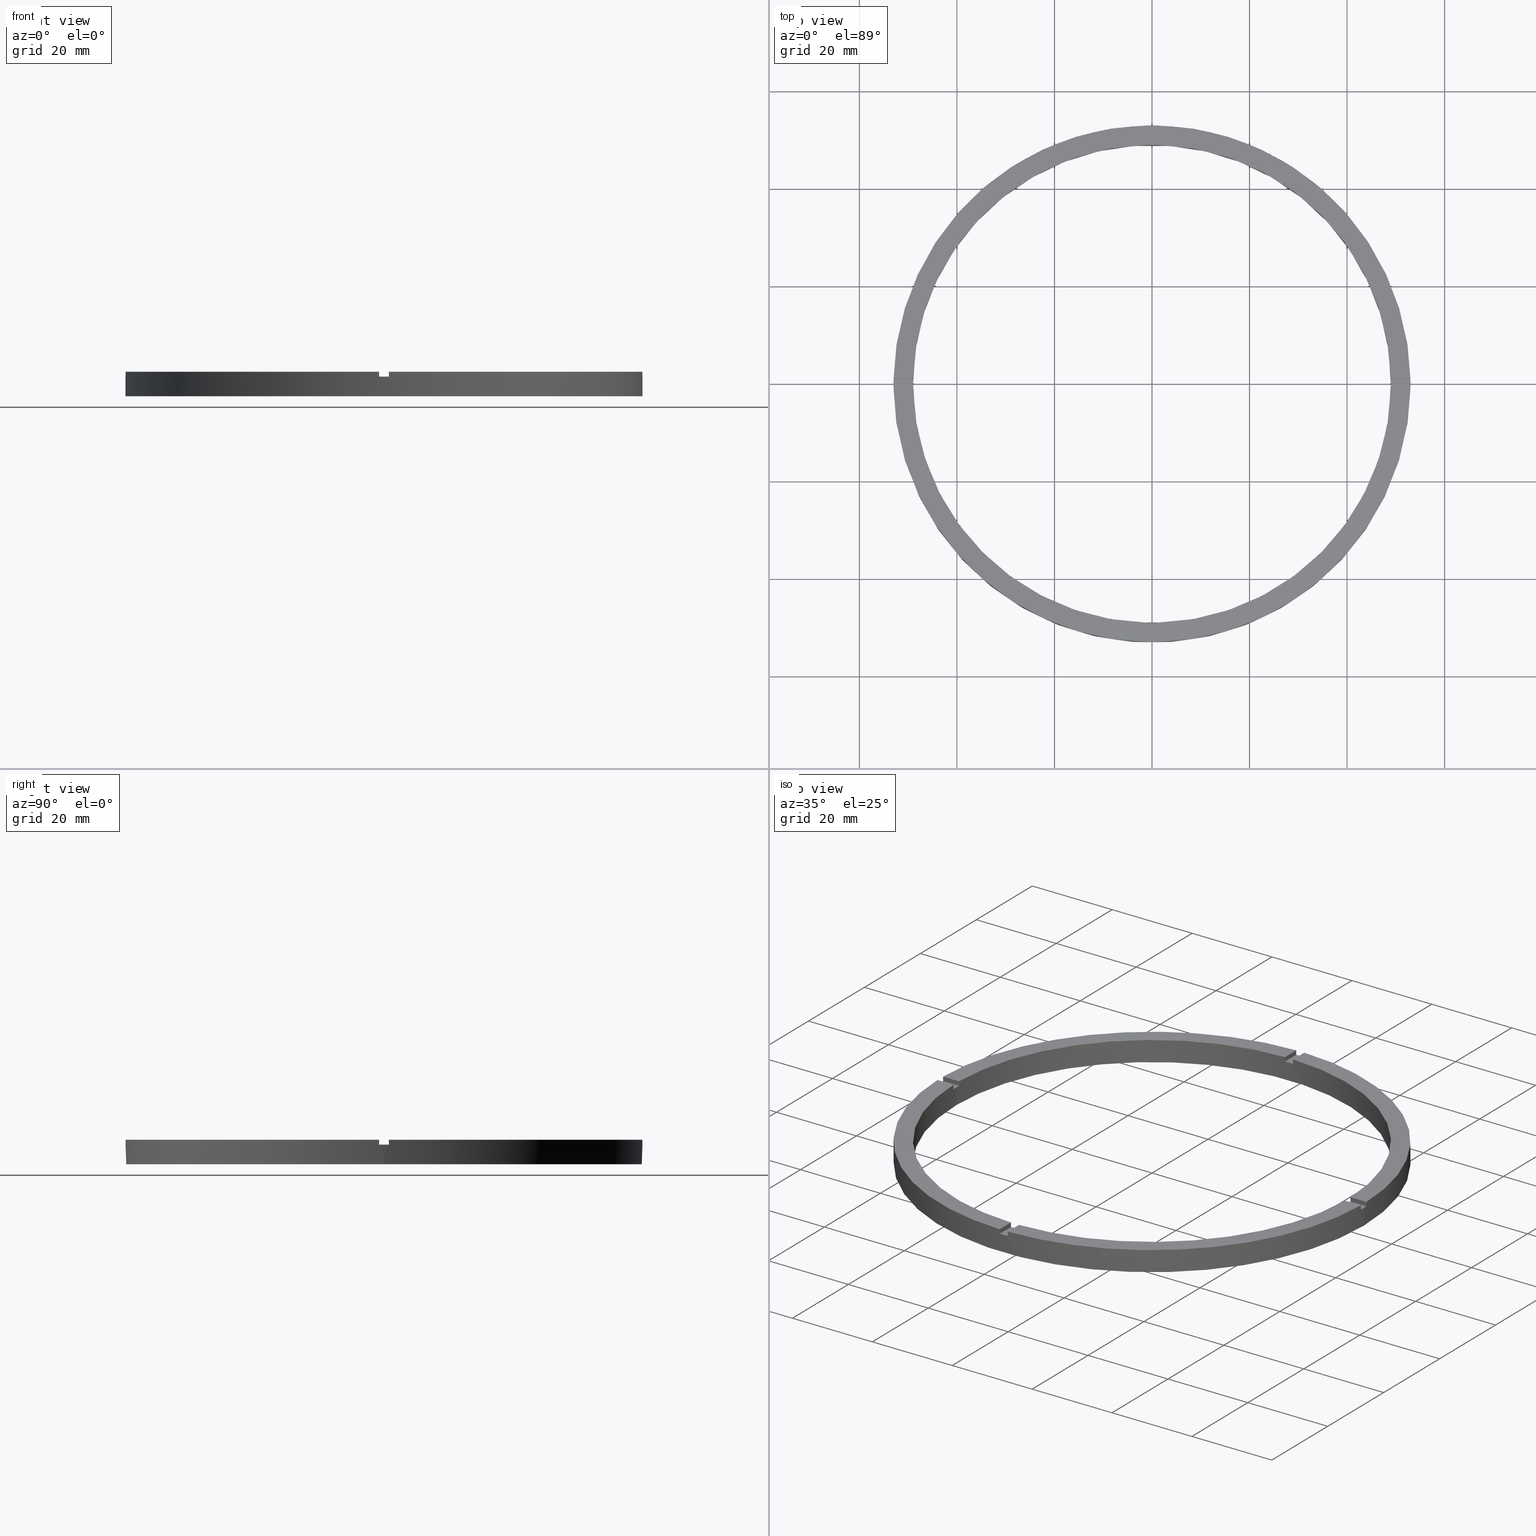
[diagram: canonical four-view strip — front | top / right | iso, engineering-drawing reading convention]
A machine part, canonical four-view strip (front | top / right | iso — engineering-drawing reading convention). The complete STEP part file that produces these views, byte-faithful:
ISO-10303-21;
HEADER;
FILE_DESCRIPTION (( 'STEP AP203' ),
    '1' );
FILE_NAME ('514216.step',
    '2024-12-26T02:48:59',
    ( 'MSI' ),
    ( '' ),
    'SwSTEP 2.0',
    'SolidWorks 2020',
    '' );
FILE_SCHEMA (( 'CONFIG_CONTROL_DESIGN' ));
ENDSEC;

DATA;
#1 = PLANE ( 'NONE',  #713 ) ;
#2 = EDGE_CURVE ( 'NONE', #709, #726, #422, .T. ) ;
#3 = CARTESIAN_POINT ( 'NONE',  ( 0.000000000000000000, 0.000000000000000000, 5.000000000000000000 ) ) ;
#4 = AXIS2_PLACEMENT_3D ( 'NONE', #399, #776, #704 ) ;
#5 = CARTESIAN_POINT ( 'NONE',  ( 0.000000000000000000, 0.000000000000000000, 5.000000000000000000 ) ) ;
#6 = DIRECTION ( 'NONE',  ( 0.000000000000000000, 0.000000000000000000, 1.000000000000000000 ) ) ;
#7 = CARTESIAN_POINT ( 'NONE',  ( 0.9999999999999729106, 52.99056519796708642, 4.000000000000000000 ) ) ;
#8 = APPLICATION_PROTOCOL_DEFINITION ( 'international standard', 'config_control_design', 1994, #666 ) ;
#9 = AXIS2_PLACEMENT_3D ( 'NONE', #533, #412, #347 ) ;
#10 = CARTESIAN_POINT ( 'NONE',  ( -52.99056519796708642, 0.9999999999999676925, 5.000000000000000000 ) ) ;
#11 = DIRECTION ( 'NONE',  ( 0.000000000000000000, 0.000000000000000000, 1.000000000000000000 ) ) ;
#12 = CC_DESIGN_PERSON_AND_ORGANIZATION_ASSIGNMENT ( #605, #251, ( #441 ) ) ;
#13 = CARTESIAN_POINT ( 'NONE',  ( -48.98979485566356118, 0.9999999999999685807, 5.000000000000000000 ) ) ;
#14 = CARTESIAN_POINT ( 'NONE',  ( 0.000000000000000000, 0.000000000000000000, 0.000000000000000000 ) ) ;
#15 = EDGE_CURVE ( 'NONE', #727, #710, #674, .T. ) ;
#16 = CARTESIAN_POINT ( 'NONE',  ( 43.00000000000000000, -1.000000000000155209, 5.000000000000000000 ) ) ;
#17 = EDGE_CURVE ( 'NONE', #473, #504, #358, .T. ) ;
#18 = CARTESIAN_POINT ( 'NONE',  ( -1.000000000000156097, -52.99056519796708642, 5.000000000000000000 ) ) ;
#19 = CARTESIAN_POINT ( 'NONE',  ( -52.99056519796708642, -1.000000000000032419, 5.000000000000000000 ) ) ;
#20 = DIRECTION ( 'NONE',  ( 0.000000000000000000, 0.000000000000000000, 1.000000000000000000 ) ) ;
#21 = CARTESIAN_POINT ( 'NONE',  ( -43.00000000000019185, -1.000000000000030420, 5.000000000000000000 ) ) ;
#22 = EDGE_CURVE ( 'NONE', #724, #767, #628, .T. ) ;
#23 = DIRECTION ( 'NONE',  ( 0.000000000000000000, 0.000000000000000000, 1.000000000000000000 ) ) ;
#24 = DIRECTION ( 'NONE',  ( 1.000000000000000000, 0.000000000000000000, -0.000000000000000000 ) ) ;
#25 = AXIS2_PLACEMENT_3D ( 'NONE', #137, #211, #319 ) ;
#26 = FACE_OUTER_BOUND ( 'NONE', #478, .T. ) ;
#27 = CARTESIAN_POINT ( 'NONE',  ( 0.000000000000000000, 0.000000000000000000, 0.000000000000000000 ) ) ;
#28 = VECTOR ( 'NONE', #256, 1000.000000000000000 ) ;
#29 = VECTOR ( 'NONE', #564, 1000.000000000000000 ) ;
#30 = FACE_OUTER_BOUND ( 'NONE', #222, .T. ) ;
#31 = DIRECTION ( 'NONE',  ( 1.000000000000000000, 1.951563910473907735E-16, -0.000000000000000000 ) ) ;
#32 = LINE ( 'NONE', #16, #55 ) ;
#33 = ADVANCED_FACE ( 'NONE', ( #614 ), #640, .T. ) ;
#34 = CIRCLE ( 'NONE', #448, 53.00000000000000711 ) ;
#35 = LINE ( 'NONE', #782, #289 ) ;
#36 = LINE ( 'NONE', #712, #581 ) ;
#37 = AXIS2_PLACEMENT_3D ( 'NONE', #515, #383, #386 ) ;
#38 = LINE ( 'NONE', #179, #549 ) ;
#39 = VECTOR ( 'NONE', #486, 1000.000000000000000 ) ;
#40 = CARTESIAN_POINT ( 'NONE',  ( 0.000000000000000000, 0.000000000000000000, 4.000000000000000000 ) ) ;
#41 = CIRCLE ( 'NONE', #302, 53.00000000000000711 ) ;
#42 = CIRCLE ( 'NONE', #424, 49.00000000000000000 ) ;
#43 = CC_DESIGN_PERSON_AND_ORGANIZATION_ASSIGNMENT ( #747, #86, ( #493 ) ) ;
#44 = DIRECTION ( 'NONE',  ( 1.301042606982605074E-16, -1.000000000000000000, 0.000000000000000000 ) ) ;
#45 = CYLINDRICAL_SURFACE ( 'NONE', #532, 49.00000000000000000 ) ;
#46 = PLANE ( 'NONE',  #742 ) ;
#47 = FACE_OUTER_BOUND ( 'NONE', #470, .T. ) ;
#48 = CIRCLE ( 'NONE', #622, 53.00000000000000711 ) ;
#49 = CIRCLE ( 'NONE', #665, 49.00000000000000000 ) ;
#50 = VECTOR ( 'NONE', #325, 1000.000000000000000 ) ;
#51 = EDGE_CURVE ( 'NONE', #459, #240, #97, .T. ) ;
#52 = DIRECTION ( 'NONE',  ( -1.000000000000000000, 0.000000000000000000, 0.000000000000000000 ) ) ;
#53 = CIRCLE ( 'NONE', #489, 49.00000000000000000 ) ;
#54 = EDGE_CURVE ( 'NONE', #244, #646, #101, .T. ) ;
#55 = VECTOR ( 'NONE', #201, 1000.000000000000000 ) ;
#56 = AXIS2_PLACEMENT_3D ( 'NONE', #700, #226, #773 ) ;
#57 = LINE ( 'NONE', #769, #29 ) ;
#58 = LINE ( 'NONE', #378, #598 ) ;
#59 = DIRECTION ( 'NONE',  ( -0.000000000000000000, -0.000000000000000000, -1.000000000000000000 ) ) ;
#60 = VECTOR ( 'NONE', #254, 1000.000000000000000 ) ;
#61 = CIRCLE ( 'NONE', #243, 53.00000000000000711 ) ;
#62 = EDGE_CURVE ( 'NONE', #407, #723, #87, .T. ) ;
#63 = LINE ( 'NONE', #361, #590 ) ;
#64 = DIRECTION ( 'NONE',  ( -0.000000000000000000, -1.000000000000000000, -0.000000000000000000 ) ) ;
#65 = DIRECTION ( 'NONE',  ( 1.000000000000000000, 0.000000000000000000, 0.000000000000000000 ) ) ;
#66 = AXIS2_PLACEMENT_3D ( 'NONE', #132, #116, #264 ) ;
#67 = CIRCLE ( 'NONE', #538, 53.00000000000000711 ) ;
#68 = CARTESIAN_POINT ( 'NONE',  ( 0.000000000000000000, 0.000000000000000000, 4.000000000000000000 ) ) ;
#69 = CARTESIAN_POINT ( 'NONE',  ( -1.000000000000156763, -48.98979485566356118, 5.000000000000000000 ) ) ;
#70 = VECTOR ( 'NONE', #59, 1000.000000000000000 ) ;
#71 = FACE_OUTER_BOUND ( 'NONE', #199, .T. ) ;
#72 = APPLICATION_PROTOCOL_DEFINITION ( 'international standard', 'config_control_design', 1994, #763 ) ;
#73 = DATE_AND_TIME ( #601, #76 ) ;
#74 = DIRECTION ( 'NONE',  ( 1.000000000000000000, 0.000000000000000000, 0.000000000000000000 ) ) ;
#75 = VECTOR ( 'NONE', #215, 1000.000000000000000 ) ;
#76 = LOCAL_TIME ( 10, 48, 59.00000000000000000, #327 ) ;
#77 = AXIS2_PLACEMENT_3D ( 'NONE', #777, #173, #293 ) ;
#78 = VECTOR ( 'NONE', #64, 1000.000000000000000 ) ;
#79 = CARTESIAN_POINT ( 'NONE',  ( 0.000000000000000000, 0.000000000000000000, 0.000000000000000000 ) ) ;
#80 = CYLINDRICAL_SURFACE ( 'NONE', #545, 49.00000000000000000 ) ;
#81 = DIRECTION ( 'NONE',  ( 1.000000000000000000, 1.951563910473907735E-16, -0.000000000000000000 ) ) ;
#82 = CALENDAR_DATE ( 2024, 26, 12 ) ;
#83 = APPROVAL ( #301, 'δָ��' ) ;
#84 = VECTOR ( 'NONE', #490, 1000.000000000000000 ) ;
#85 = DIRECTION ( 'NONE',  ( 1.000000000000000000, 0.000000000000000000, 0.000000000000000000 ) ) ;
#86 = PERSON_AND_ORGANIZATION_ROLE ( 'design_supplier' ) ;
#87 = LINE ( 'NONE', #670, #617 ) ;
#88 = CARTESIAN_POINT ( 'NONE',  ( -52.99056519796708642, -1.000000000000032419, 4.000000000000000000 ) ) ;
#89 = LINE ( 'NONE', #770, #90 ) ;
#90 = VECTOR ( 'NONE', #630, 1000.000000000000000 ) ;
#91 = VECTOR ( 'NONE', #261, 1000.000000000000000 ) ;
#92 = DIRECTION ( 'NONE',  ( 1.000000000000000000, 0.000000000000000000, -0.000000000000000000 ) ) ;
#93 = DIRECTION ( 'NONE',  ( 0.000000000000000000, 0.000000000000000000, 1.000000000000000000 ) ) ;
#94 = VECTOR ( 'NONE', #259, 1000.000000000000000 ) ;
#95 = FACE_OUTER_BOUND ( 'NONE', #205, .T. ) ;
#96 = AXIS2_PLACEMENT_3D ( 'NONE', #385, #458, #683 ) ;
#97 = CIRCLE ( 'NONE', #414, 49.00000000000000000 ) ;
#98 = VECTOR ( 'NONE', #388, 1000.000000000000000 ) ;
#99 = EDGE_CURVE ( 'NONE', #724, #415, #613, .T. ) ;
#100 = CARTESIAN_POINT ( 'NONE',  ( -48.98979485566356118, 0.9999999999999685807, 4.000000000000000000 ) ) ;
#101 = LINE ( 'NONE', #677, #365 ) ;
#102 = DIRECTION ( 'NONE',  ( 0.000000000000000000, 0.000000000000000000, 1.000000000000000000 ) ) ;
#103 = CARTESIAN_POINT ( 'NONE',  ( -48.98979485566356118, -1.000000000000031530, 4.000000000000000000 ) ) ;
#104 = DIRECTION ( 'NONE',  ( -0.000000000000000000, -0.000000000000000000, -1.000000000000000000 ) ) ;
#105 = DIRECTION ( 'NONE',  ( -0.000000000000000000, -0.000000000000000000, -1.000000000000000000 ) ) ;
#106 = DIRECTION ( 'NONE',  ( -0.000000000000000000, -0.000000000000000000, -1.000000000000000000 ) ) ;
#107 = AXIS2_PLACEMENT_3D ( 'NONE', #308, #104, #52 ) ;
#108 = EDGE_CURVE ( 'NONE', #739, #129, #357, .T. ) ;
#109 = MECHANICAL_CONTEXT ( 'NONE', #666, 'mechanical' ) ;
#110 = EDGE_CURVE ( 'NONE', #407, #709, #611, .T. ) ;
#111 = CARTESIAN_POINT ( 'NONE',  ( -53.00000000000000711, 0.000000000000000000, 0.000000000000000000 ) ) ;
#112 = ORIENTED_EDGE ( 'NONE', *, *, #427, .T. ) ;
#113 = MANIFOLD_SOLID_BREP ( '�г�-����1', #475 ) ;
#114 = DIRECTION ( 'NONE',  ( 1.000000000000000000, 0.000000000000000000, 0.000000000000000000 ) ) ;
#115 = ORIENTED_EDGE ( 'NONE', *, *, #298, .F. ) ;
#116 = DIRECTION ( 'NONE',  ( 1.951563910473907735E-16, -1.000000000000000000, 0.000000000000000000 ) ) ;
#117 = ORIENTED_EDGE ( 'NONE', *, *, #509, .T. ) ;
#118 = EDGE_CURVE ( 'NONE', #705, #474, #89, .T. ) ;
#119 = ORIENTED_EDGE ( 'NONE', *, *, #707, .F. ) ;
#120 = CARTESIAN_POINT ( 'NONE',  ( 48.98979485566356828, 0.9999999999998452349, 5.000000000000000000 ) ) ;
#121 = ORIENTED_EDGE ( 'NONE', *, *, #110, .F. ) ;
#122 = DIRECTION ( 'NONE',  ( 1.000000000000000000, 0.000000000000000000, -0.000000000000000000 ) ) ;
#123 = EDGE_LOOP ( 'NONE', ( #701, #190, #682, #171 ) ) ;
#124 = CARTESIAN_POINT ( 'NONE',  ( 0.9999999999999729106, 48.98979485566356118, 5.000000000000000000 ) ) ;
#125 = AXIS2_PLACEMENT_3D ( 'NONE', #551, #20, #263 ) ;
#126 = ORIENTED_EDGE ( 'NONE', *, *, #379, .F. ) ;
#127 = ORIENTED_EDGE ( 'NONE', *, *, #62, .T. ) ;
#128 = CARTESIAN_POINT ( 'NONE',  ( 0.9999999999998425704, -43.00000000000018474, 4.000000000000000000 ) ) ;
#129 = VERTEX_POINT ( 'NONE', #520 ) ;
#130 = ORIENTED_EDGE ( 'NONE', *, *, #554, .T. ) ;
#131 = DATE_TIME_ROLE ( 'classification_date' ) ;
#132 = CARTESIAN_POINT ( 'NONE',  ( -43.00000000000019185, -1.000000000000030420, 4.000000000000000000 ) ) ;
#133 = ORIENTED_EDGE ( 'NONE', *, *, #167, .T. ) ;
#134 = ORIENTED_EDGE ( 'NONE', *, *, #17, .T. ) ;
#135 = DIRECTION ( 'NONE',  ( 0.000000000000000000, 0.000000000000000000, 1.000000000000000000 ) ) ;
#136 = ORIENTED_EDGE ( 'NONE', *, *, #697, .F. ) ;
#137 = CARTESIAN_POINT ( 'NONE',  ( 0.000000000000000000, 0.000000000000000000, 4.000000000000000000 ) ) ;
#138 = CARTESIAN_POINT ( 'NONE',  ( 0.000000000000000000, 0.000000000000000000, 5.000000000000000000 ) ) ;
#139 = ORIENTED_EDGE ( 'NONE', *, *, #22, .T. ) ;
#140 = AXIS2_PLACEMENT_3D ( 'NONE', #79, #768, #680 ) ;
#141 = ORIENTED_EDGE ( 'NONE', *, *, #54, .T. ) ;
#142 = ORIENTED_EDGE ( 'NONE', *, *, #632, .T. ) ;
#143 = CARTESIAN_POINT ( 'NONE',  ( 0.000000000000000000, 0.000000000000000000, 4.000000000000000000 ) ) ;
#144 = CARTESIAN_POINT ( 'NONE',  ( 0.000000000000000000, 0.000000000000000000, 5.000000000000000000 ) ) ;
#145 = EDGE_LOOP ( 'NONE', ( #479, #430, #234, #197 ) ) ;
#146 = VERTEX_POINT ( 'NONE', #88 ) ;
#147 = CC_DESIGN_APPROVAL ( #541, ( #493 ) ) ;
#148 = ORIENTED_EDGE ( 'NONE', *, *, #379, .T. ) ;
#149 = ORIENTED_EDGE ( 'NONE', *, *, #525, .F. ) ;
#150 = VERTEX_POINT ( 'NONE', #18 ) ;
#151 = VECTOR ( 'NONE', #283, 1000.000000000000000 ) ;
#152 = ORIENTED_EDGE ( 'NONE', *, *, #539, .F. ) ;
#153 = EDGE_CURVE ( 'NONE', #437, #240, #620, .T. ) ;
#154 = ADVANCED_FACE ( 'NONE', ( #359 ), #760, .F. ) ;
#155 = ORIENTED_EDGE ( 'NONE', *, *, #118, .F. ) ;
#156 = EDGE_CURVE ( 'NONE', #739, #404, #369, .T. ) ;
#157 = DIRECTION ( 'NONE',  ( 1.000000000000000000, 0.000000000000000000, 0.000000000000000000 ) ) ;
#158 = EDGE_LOOP ( 'NONE', ( #168, #644, #231, #141 ) ) ;
#159 = ORIENTED_EDGE ( 'NONE', *, *, #419, .T. ) ;
#160 = PRODUCT_DEFINITION_SHAPE ( 'NONE', 'NONE',  #441 ) ;
#161 = ORIENTED_EDGE ( 'NONE', *, *, #527, .F. ) ;
#162 = AXIS2_PLACEMENT_3D ( 'NONE', #143, #352, #157 ) ;
#163 = ORIENTED_EDGE ( 'NONE', *, *, #156, .F. ) ;
#164 = ORIENTED_EDGE ( 'NONE', *, *, #594, .T. ) ;
#165 = ORIENTED_EDGE ( 'NONE', *, *, #468, .T. ) ;
#166 = ORIENTED_EDGE ( 'NONE', *, *, #17, .F. ) ;
#167 = EDGE_CURVE ( 'NONE', #244, #438, #616, .T. ) ;
#168 = ORIENTED_EDGE ( 'NONE', *, *, #372, .T. ) ;
#169 = UNCERTAINTY_MEASURE_WITH_UNIT (LENGTH_MEASURE( 1.000000000000000082E-05 ), #257, 'distance_accuracy_value', 'NONE');
#170 = DIRECTION ( 'NONE',  ( 1.000000000000000000, 0.000000000000000000, 0.000000000000000000 ) ) ;
#171 = ORIENTED_EDGE ( 'NONE', *, *, #554, .F. ) ;
#172 = CARTESIAN_POINT ( 'NONE',  ( 43.00000000000000000, -1.000000000000155209, 4.000000000000000000 ) ) ;
#173 = DIRECTION ( 'NONE',  ( 1.000000000000000000, -0.000000000000000000, 0.000000000000000000 ) ) ;
#174 = APPROVAL_ROLE ( '' ) ;
#175 = ORIENTED_EDGE ( 'NONE', *, *, #276, .F. ) ;
#176 = ORIENTED_EDGE ( 'NONE', *, *, #99, .F. ) ;
#177 = DIRECTION ( 'NONE',  ( 1.000000000000000000, 0.000000000000000000, 0.000000000000000000 ) ) ;
#178 = ORIENTED_EDGE ( 'NONE', *, *, #311, .T. ) ;
#179 = CARTESIAN_POINT ( 'NONE',  ( -1.000000000000027089, 43.00000000000000000, 4.000000000000000000 ) ) ;
#180 = DIRECTION ( 'NONE',  ( 0.000000000000000000, 0.000000000000000000, 1.000000000000000000 ) ) ;
#181 = ORIENTED_EDGE ( 'NONE', *, *, #2, .F. ) ;
#182 = ORIENTED_EDGE ( 'NONE', *, *, #759, .T. ) ;
#183 = EDGE_LOOP ( 'NONE', ( #159, #413, #126, #186, #391, #155, #117, #440, #133, #696, #178, #443 ) ) ;
#184 = EDGE_LOOP ( 'NONE', ( #711, #447, #112, #389 ) ) ;
#185 = PRODUCT_RELATED_PRODUCT_CATEGORY ( 'detail', '', ( #524 ) ) ;
#186 = ORIENTED_EDGE ( 'NONE', *, *, #153, .F. ) ;
#187 = PLANE ( 'NONE',  #77 ) ;
#188 =( NAMED_UNIT ( * ) PLANE_ANGLE_UNIT ( ) SI_UNIT ( $, .RADIAN. ) );
#189 = ORIENTED_EDGE ( 'NONE', *, *, #525, .T. ) ;
#190 = ORIENTED_EDGE ( 'NONE', *, *, #589, .T. ) ;
#191 = AXIS2_PLACEMENT_3D ( 'NONE', #592, #722, #645 ) ;
#192 = ORIENTED_EDGE ( 'NONE', *, *, #296, .F. ) ;
#193 = ORIENTED_EDGE ( 'NONE', *, *, #634, .F. ) ;
#194 = VERTEX_POINT ( 'NONE', #124 ) ;
#195 = ORIENTED_EDGE ( 'NONE', *, *, #419, .F. ) ;
#196 = DIRECTION ( 'NONE',  ( -0.000000000000000000, -0.000000000000000000, -1.000000000000000000 ) ) ;
#197 = ORIENTED_EDGE ( 'NONE', *, *, #594, .F. ) ;
#198 = ORIENTED_EDGE ( 'NONE', *, *, #278, .T. ) ;
#199 = EDGE_LOOP ( 'NONE', ( #192, #718, #717, #426, #661, #453, #706, #748, #176, #139, #149, #681 ) ) ;
#200 = ORIENTED_EDGE ( 'NONE', *, *, #108, .T. ) ;
#201 = DIRECTION ( 'NONE',  ( 1.000000000000000000, 6.505213034913025371E-17, 0.000000000000000000 ) ) ;
#202 = CC_DESIGN_DATE_AND_TIME_ASSIGNMENT ( #464, #337, ( #441 ) ) ;
#203 = APPROVAL_STATUS ( 'not_yet_approved' ) ;
#204 = EDGE_LOOP ( 'NONE', ( #652, #398, #692, #491 ) ) ;
#205 = EDGE_LOOP ( 'NONE', ( #200, #483, #212, #460 ) ) ;
#206 = ORIENTED_EDGE ( 'NONE', *, *, #539, .T. ) ;
#207 = CARTESIAN_POINT ( 'NONE',  ( 0.9999999999998432365, -48.98979485566356828, 5.000000000000000000 ) ) ;
#208 = ORIENTED_EDGE ( 'NONE', *, *, #530, .F. ) ;
#209 = COORDINATED_UNIVERSAL_TIME_OFFSET ( 8, 0, .AHEAD. ) ;
#210 = ORIENTED_EDGE ( 'NONE', *, *, #372, .F. ) ;
#211 = DIRECTION ( 'NONE',  ( -0.000000000000000000, 0.000000000000000000, 1.000000000000000000 ) ) ;
#212 = ORIENTED_EDGE ( 'NONE', *, *, #662, .F. ) ;
#213 = EDGE_CURVE ( 'NONE', #739, #738, #366, .T. ) ;
#214 = ORIENTED_EDGE ( 'NONE', *, *, #714, .F. ) ;
#215 = DIRECTION ( 'NONE',  ( -1.301042606982605074E-16, 1.000000000000000000, -0.000000000000000000 ) ) ;
#216 = ORIENTED_EDGE ( 'NONE', *, *, #278, .F. ) ;
#217 = CARTESIAN_POINT ( 'NONE',  ( 0.000000000000000000, 0.000000000000000000, 0.000000000000000000 ) ) ;
#218 = DIRECTION ( 'NONE',  ( 1.000000000000000000, 0.000000000000000000, 0.000000000000000000 ) ) ;
#219 = LOCAL_TIME ( 10, 48, 59.00000000000000000, #752 ) ;
#220 = ORIENTED_EDGE ( 'NONE', *, *, #153, .T. ) ;
#221 = EDGE_CURVE ( 'NONE', #659, #705, #368, .T. ) ;
#222 = EDGE_LOOP ( 'NONE', ( #675, #431, #719, #452 ) ) ;
#223 = DATE_AND_TIME ( #745, #757 ) ;
#224 = VERTEX_POINT ( 'NONE', #227 ) ;
#225 = APPROVAL_PERSON_ORGANIZATION ( #751, #516, #268 ) ;
#226 = DIRECTION ( 'NONE',  ( 0.000000000000000000, 0.000000000000000000, 1.000000000000000000 ) ) ;
#227 = CARTESIAN_POINT ( 'NONE',  ( 53.00000000000000711, 6.490628035480973107E-15, 0.000000000000000000 ) ) ;
#228 = DATE_AND_TIME ( #497, #219 ) ;
#229 = ORIENTED_EDGE ( 'NONE', *, *, #686, .F. ) ;
#230 = ADVANCED_FACE ( 'NONE', ( #363 ), #329, .T. ) ;
#231 = ORIENTED_EDGE ( 'NONE', *, *, #167, .F. ) ;
#232 = CARTESIAN_POINT ( 'NONE',  ( -1.000000000000157430, -43.00000000000018474, 5.000000000000000000 ) ) ;
#233 = DIRECTION ( 'NONE',  ( 0.000000000000000000, 0.000000000000000000, 1.000000000000000000 ) ) ;
#234 = ORIENTED_EDGE ( 'NONE', *, *, #298, .T. ) ;
#235 = PERSON_AND_ORGANIZATION ( #721, #599 ) ;
#236 = ORIENTED_EDGE ( 'NONE', *, *, #62, .F. ) ;
#237 = PERSON_AND_ORGANIZATION ( #721, #599 ) ;
#238 = ADVANCED_FACE ( 'NONE', ( #95 ), #576, .F. ) ;
#239 = DIRECTION ( 'NONE',  ( -1.000000000000000000, 0.000000000000000000, 0.000000000000000000 ) ) ;
#240 = VERTEX_POINT ( 'NONE', #523 ) ;
#241 = CARTESIAN_POINT ( 'NONE',  ( 0.000000000000000000, 0.000000000000000000, 5.000000000000000000 ) ) ;
#242 = CARTESIAN_POINT ( 'NONE',  ( -52.99056519796708642, 0.9999999999999676925, 5.000000000000000000 ) ) ;
#243 = AXIS2_PLACEMENT_3D ( 'NONE', #68, #535, #498 ) ;
#244 = VERTEX_POINT ( 'NONE', #637 ) ;
#245 = EDGE_CURVE ( 'NONE', #244, #672, #625, .T. ) ;
#246 = CARTESIAN_POINT ( 'NONE',  ( 0.000000000000000000, 0.000000000000000000, 5.000000000000000000 ) ) ;
#247 = CC_DESIGN_APPROVAL ( #83, ( #441 ) ) ;
#248 = DIRECTION ( 'NONE',  ( 1.000000000000000000, 0.000000000000000000, 0.000000000000000000 ) ) ;
#249 = DIRECTION ( 'NONE',  ( 0.000000000000000000, 0.000000000000000000, 1.000000000000000000 ) ) ;
#250 =( GEOMETRIC_REPRESENTATION_CONTEXT ( 3 ) GLOBAL_UNCERTAINTY_ASSIGNED_CONTEXT ( ( #169 ) ) GLOBAL_UNIT_ASSIGNED_CONTEXT ( ( #257, #188, #743 ) ) REPRESENTATION_CONTEXT ( 'NONE', 'WORKASPACE' ) );
#251 = PERSON_AND_ORGANIZATION_ROLE ( 'creator' ) ;
#252 = CC_DESIGN_PERSON_AND_ORGANIZATION_ASSIGNMENT ( #235, #446, ( #615 ) ) ;
#253 = CARTESIAN_POINT ( 'NONE',  ( 0.000000000000000000, 0.000000000000000000, 4.000000000000000000 ) ) ;
#254 = DIRECTION ( 'NONE',  ( -0.000000000000000000, -0.000000000000000000, -1.000000000000000000 ) ) ;
#255 = PLANE ( 'NONE',  #684 ) ;
#256 = DIRECTION ( 'NONE',  ( 1.000000000000000000, 6.505213034913025371E-17, 0.000000000000000000 ) ) ;
#257 =( LENGTH_UNIT ( ) NAMED_UNIT ( * ) SI_UNIT ( .MILLI., .METRE. ) );
#258 = CARTESIAN_POINT ( 'NONE',  ( -53.00000000000000711, 0.000000000000000000, 5.000000000000000000 ) ) ;
#259 = DIRECTION ( 'NONE',  ( -0.000000000000000000, -0.000000000000000000, -1.000000000000000000 ) ) ;
#260 = CARTESIAN_POINT ( 'NONE',  ( 0.000000000000000000, 0.000000000000000000, 4.000000000000000000 ) ) ;
#261 = DIRECTION ( 'NONE',  ( -0.000000000000000000, -0.000000000000000000, -1.000000000000000000 ) ) ;
#262 = DIRECTION ( 'NONE',  ( -1.000000000000000000, -1.951563910473907735E-16, 0.000000000000000000 ) ) ;
#263 = DIRECTION ( 'NONE',  ( 1.000000000000000000, 0.000000000000000000, 0.000000000000000000 ) ) ;
#264 = DIRECTION ( 'NONE',  ( 1.000000000000000000, 1.951563910473907735E-16, 0.000000000000000000 ) ) ;
#265 = EDGE_CURVE ( 'NONE', #451, #146, #295, .T. ) ;
#266 = CARTESIAN_POINT ( 'NONE',  ( 43.00000000000000000, 0.9999999999998447908, 4.000000000000000000 ) ) ;
#267 = PLANE ( 'NONE',  #346 ) ;
#268 = APPROVAL_ROLE ( '' ) ;
#269 = AXIS2_PLACEMENT_3D ( 'NONE', #350, #643, #279 ) ;
#270 = CARTESIAN_POINT ( 'NONE',  ( 53.00000000000000711, 6.490628035480973107E-15, 4.000000000000000000 ) ) ;
#271 = DIRECTION ( 'NONE',  ( 0.000000000000000000, 0.000000000000000000, 1.000000000000000000 ) ) ;
#272 = APPROVAL_STATUS ( 'not_yet_approved' ) ;
#273 = DIRECTION ( 'NONE',  ( 1.000000000000000000, 0.000000000000000000, 0.000000000000000000 ) ) ;
#274 = CC_DESIGN_DATE_AND_TIME_ASSIGNMENT ( #749, #131, ( #615 ) ) ;
#275 = ADVANCED_FACE ( 'NONE', ( #324 ), #45, .F. ) ;
#276 = EDGE_CURVE ( 'NONE', #194, #767, #550, .T. ) ;
#277 = AXIS2_PLACEMENT_3D ( 'NONE', #312, #694, #439 ) ;
#278 = EDGE_CURVE ( 'NONE', #710, #194, #42, .T. ) ;
#279 = DIRECTION ( 'NONE',  ( 1.000000000000000000, 0.000000000000000000, 0.000000000000000000 ) ) ;
#280 = PLANE ( 'NONE',  #552 ) ;
#281 = DIRECTION ( 'NONE',  ( 1.000000000000000000, 0.000000000000000000, 0.000000000000000000 ) ) ;
#282 = DIRECTION ( 'NONE',  ( 1.000000000000000000, 0.000000000000000000, 0.000000000000000000 ) ) ;
#283 = DIRECTION ( 'NONE',  ( -1.000000000000000000, -6.505213034913025371E-17, -0.000000000000000000 ) ) ;
#284 = CARTESIAN_POINT ( 'NONE',  ( 52.99056519796708642, -1.000000000000154543, 5.000000000000000000 ) ) ;
#285 = DIRECTION ( 'NONE',  ( 1.000000000000000000, 0.000000000000000000, -0.000000000000000000 ) ) ;
#286 = CARTESIAN_POINT ( 'NONE',  ( -1.000000000000156097, -52.99056519796708642, 5.000000000000000000 ) ) ;
#287 = AXIS2_PLACEMENT_3D ( 'NONE', #14, #510, #543 ) ;
#288 = CARTESIAN_POINT ( 'NONE',  ( 0.000000000000000000, 0.000000000000000000, 5.000000000000000000 ) ) ;
#289 = VECTOR ( 'NONE', #105, 1000.000000000000000 ) ;
#290 = CIRCLE ( 'NONE', #162, 49.00000000000000000 ) ;
#291 = DIRECTION ( 'NONE',  ( 0.000000000000000000, 0.000000000000000000, 1.000000000000000000 ) ) ;
#292 = VECTOR ( 'NONE', #44, 1000.000000000000000 ) ;
#293 = DIRECTION ( 'NONE',  ( 0.000000000000000000, 0.000000000000000000, -1.000000000000000000 ) ) ;
#294 = CARTESIAN_POINT ( 'NONE',  ( 48.98979485566356118, -1.000000000000154765, 5.000000000000000000 ) ) ;
#295 = CIRCLE ( 'NONE', #762, 53.00000000000000711 ) ;
#296 = EDGE_CURVE ( 'NONE', #469, #650, #41, .T. ) ;
#297 = CIRCLE ( 'NONE', #125, 53.00000000000000711 ) ;
#298 = EDGE_CURVE ( 'NONE', #698, #404, #32, .T. ) ;
#299 = FACE_OUTER_BOUND ( 'NONE', #725, .T. ) ;
#300 = FACE_OUTER_BOUND ( 'NONE', #423, .T. ) ;
#301 = APPROVAL_STATUS ( 'not_yet_approved' ) ;
#302 = AXIS2_PLACEMENT_3D ( 'NONE', #544, #387, #765 ) ;
#303 = LINE ( 'NONE', #495, #561 ) ;
#304 = LINE ( 'NONE', #258, #307 ) ;
#305 = EDGE_CURVE ( 'NONE', #451, #771, #304, .T. ) ;
#306 = LINE ( 'NONE', #420, #314 ) ;
#307 = VECTOR ( 'NONE', #558, 1000.000000000000000 ) ;
#308 = CARTESIAN_POINT ( 'NONE',  ( 0.000000000000000000, 0.000000000000000000, 5.000000000000000000 ) ) ;
#309 = FACE_OUTER_BOUND ( 'NONE', #397, .T. ) ;
#310 = FACE_OUTER_BOUND ( 'NONE', #145, .T. ) ;
#311 = EDGE_CURVE ( 'NONE', #129, #698, #49, .T. ) ;
#312 = CARTESIAN_POINT ( 'NONE',  ( 0.000000000000000000, 0.000000000000000000, 4.000000000000000000 ) ) ;
#313 = FACE_OUTER_BOUND ( 'NONE', #184, .T. ) ;
#314 = VECTOR ( 'NONE', #348, 1000.000000000000000 ) ;
#315 = AXIS2_PLACEMENT_3D ( 'NONE', #461, #566, #24 ) ;
#316 = PLANE ( 'NONE',  #416 ) ;
#317 = LINE ( 'NONE', #232, #292 ) ;
#318 = VECTOR ( 'NONE', #31, 1000.000000000000000 ) ;
#319 = DIRECTION ( 'NONE',  ( 1.000000000000000000, 0.000000000000000000, 0.000000000000000000 ) ) ;
#320 = CIRCLE ( 'NONE', #506, 49.00000000000000000 ) ;
#321 = LINE ( 'NONE', #172, #28 ) ;
#322 = CARTESIAN_POINT ( 'NONE',  ( -1.000000000000027089, 52.99056519796708642, 5.000000000000000000 ) ) ;
#323 = CIRCLE ( 'NONE', #25, 53.00000000000000711 ) ;
#324 = FACE_OUTER_BOUND ( 'NONE', #183, .T. ) ;
#325 = DIRECTION ( 'NONE',  ( 0.000000000000000000, 1.000000000000000000, 0.000000000000000000 ) ) ;
#326 = DIRECTION ( 'NONE',  ( 0.000000000000000000, -0.000000000000000000, 1.000000000000000000 ) ) ;
#327 = COORDINATED_UNIVERSAL_TIME_OFFSET ( 8, 0, .AHEAD. ) ;
#328 = DIRECTION ( 'NONE',  ( -1.000000000000000000, -6.505213034913025371E-17, -0.000000000000000000 ) ) ;
#329 = PLANE ( 'NONE',  #315 ) ;
#330 = LINE ( 'NONE', #128, #75 ) ;
#331 = ADVANCED_FACE ( 'NONE', ( #313 ), #629, .F. ) ;
#332 = LINE ( 'NONE', #556, #595 ) ;
#333 = ADVANCED_FACE ( 'NONE', ( #30 ), #267, .T. ) ;
#334 = VECTOR ( 'NONE', #328, 1000.000000000000000 ) ;
#335 = FACE_OUTER_BOUND ( 'NONE', #466, .T. ) ;
#336 = DIRECTION ( 'NONE',  ( -0.000000000000000000, -0.000000000000000000, -1.000000000000000000 ) ) ;
#337 = DATE_TIME_ROLE ( 'creation_date' ) ;
#338 = DIRECTION ( 'NONE',  ( -1.000000000000000000, -1.951563910473907735E-16, 0.000000000000000000 ) ) ;
#339 = LINE ( 'NONE', #266, #334 ) ;
#340 = VECTOR ( 'NONE', #262, 1000.000000000000000 ) ;
#341 = AXIS2_PLACEMENT_3D ( 'NONE', #5, #249, #177 ) ;
#342 = PERSON_AND_ORGANIZATION ( #721, #599 ) ;
#343 = DIRECTION ( 'NONE',  ( 0.000000000000000000, 0.000000000000000000, 1.000000000000000000 ) ) ;
#344 = APPROVAL_DATE_TIME ( #73, #83 ) ;
#345 = LINE ( 'NONE', #207, #70 ) ;
#346 = AXIS2_PLACEMENT_3D ( 'NONE', #519, #392, #122 ) ;
#347 = DIRECTION ( 'NONE',  ( 1.000000000000000000, 6.505213034913025371E-17, 0.000000000000000000 ) ) ;
#348 = DIRECTION ( 'NONE',  ( 0.000000000000000000, 0.000000000000000000, 1.000000000000000000 ) ) ;
#349 = EDGE_CURVE ( 'NONE', #746, #459, #57, .T. ) ;
#350 = CARTESIAN_POINT ( 'NONE',  ( 0.000000000000000000, 0.000000000000000000, 4.000000000000000000 ) ) ;
#351 = COORDINATED_UNIVERSAL_TIME_OFFSET ( 8, 0, .AHEAD. ) ;
#352 = DIRECTION ( 'NONE',  ( 0.000000000000000000, 0.000000000000000000, 1.000000000000000000 ) ) ;
#353 = CYLINDRICAL_SURFACE ( 'NONE', #37, 53.00000000000000711 ) ;
#354 = LINE ( 'NONE', #286, #84 ) ;
#355 = CARTESIAN_POINT ( 'NONE',  ( 0.000000000000000000, 0.000000000000000000, 4.000000000000000000 ) ) ;
#356 = VECTOR ( 'NONE', #23, 1000.000000000000000 ) ;
#357 = LINE ( 'NONE', #559, #98 ) ;
#358 = CIRCLE ( 'NONE', #269, 49.00000000000000000 ) ;
#359 = FACE_OUTER_BOUND ( 'NONE', #204, .T. ) ;
#360 = PLANE ( 'NONE',  #405 ) ;
#361 = CARTESIAN_POINT ( 'NONE',  ( 52.99056519796709352, 0.9999999999998454570, 5.000000000000000000 ) ) ;
#362 = VECTOR ( 'NONE', #338, 1000.000000000000000 ) ;
#363 = FACE_OUTER_BOUND ( 'NONE', #663, .T. ) ;
#364 = CARTESIAN_POINT ( 'NONE',  ( -1.000000000000027089, 48.98979485566356118, 4.000000000000000000 ) ) ;
#365 = VECTOR ( 'NONE', #377, 1000.000000000000000 ) ;
#366 = LINE ( 'NONE', #546, #91 ) ;
#367 = CARTESIAN_POINT ( 'NONE',  ( 52.99056519796709352, 0.9999999999998454570, 5.000000000000000000 ) ) ;
#368 = LINE ( 'NONE', #21, #624 ) ;
#369 = CIRCLE ( 'NONE', #631, 53.00000000000000711 ) ;
#370 = CARTESIAN_POINT ( 'NONE',  ( -52.99056519796708642, -1.000000000000032419, 5.000000000000000000 ) ) ;
#371 = DIRECTION ( 'NONE',  ( -1.951563910473907735E-16, 1.000000000000000000, 0.000000000000000000 ) ) ;
#372 = EDGE_CURVE ( 'NONE', #646, #738, #323, .T. ) ;
#373 = DIRECTION ( 'NONE',  ( -0.000000000000000000, -1.000000000000000000, -0.000000000000000000 ) ) ;
#374 = CARTESIAN_POINT ( 'NONE',  ( 48.98979485566356828, 0.9999999999998452349, 5.000000000000000000 ) ) ;
#375 = DIRECTION ( 'NONE',  ( 0.000000000000000000, 0.000000000000000000, 1.000000000000000000 ) ) ;
#376 = EDGE_CURVE ( 'NONE', #709, #451, #577, .T. ) ;
#377 = DIRECTION ( 'NONE',  ( 1.301042606982605074E-16, -1.000000000000000000, 0.000000000000000000 ) ) ;
#378 = CARTESIAN_POINT ( 'NONE',  ( 0.9999999999999729106, 43.00000000000000000, 4.000000000000000000 ) ) ;
#379 = EDGE_CURVE ( 'NONE', #240, #459, #574, .T. ) ;
#380 = DIRECTION ( 'NONE',  ( 0.000000000000000000, 0.000000000000000000, 1.000000000000000000 ) ) ;
#381 = CARTESIAN_POINT ( 'NONE',  ( 0.000000000000000000, 0.000000000000000000, 0.000000000000000000 ) ) ;
#382 = AXIS2_PLACEMENT_3D ( 'NONE', #528, #239, #691 ) ;
#383 = DIRECTION ( 'NONE',  ( -0.000000000000000000, -0.000000000000000000, -1.000000000000000000 ) ) ;
#384 = EDGE_CURVE ( 'NONE', #771, #224, #297, .T. ) ;
#385 = CARTESIAN_POINT ( 'NONE',  ( -1.000000000000157430, -43.00000000000018474, 4.000000000000000000 ) ) ;
#386 = DIRECTION ( 'NONE',  ( -1.000000000000000000, 0.000000000000000000, 0.000000000000000000 ) ) ;
#387 = DIRECTION ( 'NONE',  ( 0.000000000000000000, 0.000000000000000000, 1.000000000000000000 ) ) ;
#388 = DIRECTION ( 'NONE',  ( -1.301042606982605074E-16, 1.000000000000000000, -0.000000000000000000 ) ) ;
#389 = ORIENTED_EDGE ( 'NONE', *, *, #626, .F. ) ;
#390 = ORIENTED_EDGE ( 'NONE', *, *, #51, .T. ) ;
#391 = ORIENTED_EDGE ( 'NONE', *, *, #502, .T. ) ;
#392 = DIRECTION ( 'NONE',  ( 0.000000000000000000, 0.000000000000000000, 1.000000000000000000 ) ) ;
#393 = ADVANCED_FACE ( 'NONE', ( #567, #570 ), #280, .F. ) ;
#394 = PERSON_AND_ORGANIZATION_ROLE ( 'creator' ) ;
#395 = CARTESIAN_POINT ( 'NONE',  ( 0.000000000000000000, 0.000000000000000000, 4.000000000000000000 ) ) ;
#396 = ORIENTED_EDGE ( 'NONE', *, *, #600, .F. ) ;
#397 = EDGE_LOOP ( 'NONE', ( #476, #734, #165, #729, #471, #449 ) ) ;
#398 = ORIENTED_EDGE ( 'NONE', *, *, #118, .T. ) ;
#399 = CARTESIAN_POINT ( 'NONE',  ( 0.9999999999998425704, -43.00000000000018474, 4.000000000000000000 ) ) ;
#400 = ORIENTED_EDGE ( 'NONE', *, *, #632, .F. ) ;
#401 = ADVANCED_FACE ( 'NONE', ( #309 ), #1, .T. ) ;
#402 = CC_DESIGN_SECURITY_CLASSIFICATION ( #615, ( #493 ) ) ;
#403 = ORIENTED_EDGE ( 'NONE', *, *, #600, .T. ) ;
#404 = VERTEX_POINT ( 'NONE', #284 ) ;
#405 = AXIS2_PLACEMENT_3D ( 'NONE', #246, #649, #285 ) ;
#406 = ORIENTED_EDGE ( 'NONE', *, *, #582, .T. ) ;
#407 = VERTEX_POINT ( 'NONE', #100 ) ;
#408 = CARTESIAN_POINT ( 'NONE',  ( 52.99056519796708642, -1.000000000000154543, 5.000000000000000000 ) ) ;
#409 = ORIENTED_EDGE ( 'NONE', *, *, #686, .T. ) ;
#410 = PLANE ( 'NONE',  #382 ) ;
#411 = ORIENTED_EDGE ( 'NONE', *, *, #548, .T. ) ;
#412 = DIRECTION ( 'NONE',  ( 6.505213034913025371E-17, -1.000000000000000000, 0.000000000000000000 ) ) ;
#413 = ORIENTED_EDGE ( 'NONE', *, *, #349, .T. ) ;
#414 = AXIS2_PLACEMENT_3D ( 'NONE', #381, #623, #218 ) ;
#415 = VERTEX_POINT ( 'NONE', #591 ) ;
#416 = AXIS2_PLACEMENT_3D ( 'NONE', #260, #421, #540 ) ;
#417 = CARTESIAN_POINT ( 'NONE',  ( 0.000000000000000000, 0.000000000000000000, 4.000000000000000000 ) ) ;
#418 = ORIENTED_EDGE ( 'NONE', *, *, #764, .F. ) ;
#419 = EDGE_CURVE ( 'NONE', #716, #746, #290, .T. ) ;
#420 = CARTESIAN_POINT ( 'NONE',  ( 48.98979485566356118, -1.000000000000154765, 5.000000000000000000 ) ) ;
#421 = DIRECTION ( 'NONE',  ( 0.000000000000000000, -0.000000000000000000, 1.000000000000000000 ) ) ;
#422 = LINE ( 'NONE', #242, #679 ) ;
#423 = EDGE_LOOP ( 'NONE', ( #688, #737, #400, #214 ) ) ;
#424 = AXIS2_PLACEMENT_3D ( 'NONE', #774, #758, #114 ) ;
#425 = DIRECTION ( 'NONE',  ( 1.000000000000000000, 0.000000000000000000, 0.000000000000000000 ) ) ;
#426 = ORIENTED_EDGE ( 'NONE', *, *, #305, .F. ) ;
#427 = EDGE_CURVE ( 'NONE', #672, #150, #317, .T. ) ;
#428 = ORIENTED_EDGE ( 'NONE', *, *, #296, .T. ) ;
#429 = CARTESIAN_POINT ( 'NONE',  ( 52.99056519796708642, -1.000000000000154543, 4.000000000000000000 ) ) ;
#430 = ORIENTED_EDGE ( 'NONE', *, *, #593, .T. ) ;
#431 = ORIENTED_EDGE ( 'NONE', *, *, #509, .F. ) ;
#432 = DIRECTION ( 'NONE',  ( -1.000000000000000000, -1.951563910473907735E-16, 0.000000000000000000 ) ) ;
#433 = ORIENTED_EDGE ( 'NONE', *, *, #311, .F. ) ;
#434 = ORIENTED_EDGE ( 'NONE', *, *, #626, .T. ) ;
#435 = ORIENTED_EDGE ( 'NONE', *, *, #708, .T. ) ;
#436 = DIRECTION ( 'NONE',  ( 0.000000000000000000, 0.000000000000000000, 1.000000000000000000 ) ) ;
#437 = VERTEX_POINT ( 'NONE', #639 ) ;
#438 = VERTEX_POINT ( 'NONE', #641 ) ;
#439 = DIRECTION ( 'NONE',  ( 1.000000000000000000, 0.000000000000000000, 0.000000000000000000 ) ) ;
#440 = ORIENTED_EDGE ( 'NONE', *, *, #245, .F. ) ;
#441 = PRODUCT_DEFINITION ( 'δ֪', '', #493, #496 ) ;
#442 = CARTESIAN_POINT ( 'NONE',  ( 0.000000000000000000, 0.000000000000000000, 5.000000000000000000 ) ) ;
#443 = ORIENTED_EDGE ( 'NONE', *, *, #593, .F. ) ;
#444 = CC_DESIGN_APPROVAL ( #516, ( #615 ) ) ;
#445 = DIRECTION ( 'NONE',  ( 1.000000000000000000, 0.000000000000000000, 0.000000000000000000 ) ) ;
#446 = PERSON_AND_ORGANIZATION_ROLE ( 'classification_officer' ) ;
#447 = ORIENTED_EDGE ( 'NONE', *, *, #245, .T. ) ;
#448 = AXIS2_PLACEMENT_3D ( 'NONE', #3, #6, #534 ) ;
#449 = ORIENTED_EDGE ( 'NONE', *, *, #110, .T. ) ;
#450 = CARTESIAN_POINT ( 'NONE',  ( -1.000000000000156763, -48.98979485566356118, 5.000000000000000000 ) ) ;
#451 = VERTEX_POINT ( 'NONE', #457 ) ;
#452 = ORIENTED_EDGE ( 'NONE', *, *, #707, .T. ) ;
#453 = ORIENTED_EDGE ( 'NONE', *, *, #2, .T. ) ;
#454 = CARTESIAN_POINT ( 'NONE',  ( 52.99056519796709352, 0.9999999999998454570, 4.000000000000000000 ) ) ;
#455 = ORIENTED_EDGE ( 'NONE', *, *, #530, .T. ) ;
#456 = EDGE_CURVE ( 'NONE', #664, #415, #36, .T. ) ;
#457 = CARTESIAN_POINT ( 'NONE',  ( -53.00000000000000711, 0.000000000000000000, 4.000000000000000000 ) ) ;
#458 = DIRECTION ( 'NONE',  ( -1.000000000000000000, -1.301042606982605074E-16, 0.000000000000000000 ) ) ;
#459 = VERTEX_POINT ( 'NONE', #482 ) ;
#460 = ORIENTED_EDGE ( 'NONE', *, *, #213, .F. ) ;
#461 = CARTESIAN_POINT ( 'NONE',  ( 0.000000000000000000, 0.000000000000000000, 5.000000000000000000 ) ) ;
#462 = ADVANCED_FACE ( 'NONE', ( #547 ), #410, .F. ) ;
#463 = EDGE_LOOP ( 'NONE', ( #654, #206, #166, #435 ) ) ;
#464 = DATE_AND_TIME ( #82, #607 ) ;
#465 = VERTEX_POINT ( 'NONE', #780 ) ;
#466 = EDGE_LOOP ( 'NONE', ( #647, #403, #136, #198, #229, #134, #208, #130, #236, #658, #220, #648 ) ) ;
#467 = EDGE_LOOP ( 'NONE', ( #730, #428, #142, #396, #195, #411 ) ) ;
#468 = EDGE_CURVE ( 'NONE', #146, #474, #555, .T. ) ;
#469 = VERTEX_POINT ( 'NONE', #270 ) ;
#470 = EDGE_LOOP ( 'NONE', ( #699, #409, #695, #657 ) ) ;
#471 = ORIENTED_EDGE ( 'NONE', *, *, #501, .F. ) ;
#472 = APPROVAL_DATE_TIME ( #228, #516 ) ;
#473 = VERTEX_POINT ( 'NONE', #635 ) ;
#474 = VERTEX_POINT ( 'NONE', #103 ) ;
#475 = CLOSED_SHELL ( 'NONE', ( #275, #638, #579, #481, #230, #333, #393, #526, #779, #154, #689, #401, #238, #331, #565, #571, #521, #33, #462, #580, #703 ) ) ;
#476 = ORIENTED_EDGE ( 'NONE', *, *, #376, .T. ) ;
#477 = ORIENTED_EDGE ( 'NONE', *, *, #384, .T. ) ;
#478 = EDGE_LOOP ( 'NONE', ( #175, #216, #687, #189 ) ) ;
#479 = ORIENTED_EDGE ( 'NONE', *, *, #548, .F. ) ;
#480 = DIRECTION ( 'NONE',  ( 0.000000000000000000, 0.000000000000000000, 1.000000000000000000 ) ) ;
#481 = ADVANCED_FACE ( 'NONE', ( #26 ), #583, .T. ) ;
#482 = CARTESIAN_POINT ( 'NONE',  ( 49.00000000000000000, 6.000769315822030937E-15, 0.000000000000000000 ) ) ;
#483 = ORIENTED_EDGE ( 'NONE', *, *, #778, .T. ) ;
#484 = DIRECTION ( 'NONE',  ( -0.000000000000000000, 0.000000000000000000, 1.000000000000000000 ) ) ;
#485 = PERSON_AND_ORGANIZATION ( #721, #599 ) ;
#486 = DIRECTION ( 'NONE',  ( -0.000000000000000000, -0.000000000000000000, -1.000000000000000000 ) ) ;
#487 = CARTESIAN_POINT ( 'NONE',  ( 0.9999999999999729106, 52.99056519796708642, 5.000000000000000000 ) ) ;
#488 = LOCAL_TIME ( 10, 48, 59.00000000000000000, #209 ) ;
#489 = AXIS2_PLACEMENT_3D ( 'NONE', #40, #102, #248 ) ;
#490 = DIRECTION ( 'NONE',  ( 0.000000000000000000, 0.000000000000000000, 1.000000000000000000 ) ) ;
#491 = ORIENTED_EDGE ( 'NONE', *, *, #582, .F. ) ;
#492 = CALENDAR_DATE ( 2024, 26, 12 ) ;
#493 = PRODUCT_DEFINITION_FORMATION_WITH_SPECIFIED_SOURCE ( '�κ�', '', #524, .NOT_KNOWN. ) ;
#494 = PLANE ( 'NONE',  #9 ) ;
#495 = CARTESIAN_POINT ( 'NONE',  ( -1.000000000000027089, 48.98979485566356118, 5.000000000000000000 ) ) ;
#496 = DESIGN_CONTEXT ( 'detailed design', #763, 'design' ) ;
#497 = CALENDAR_DATE ( 2024, 26, 12 ) ;
#498 = DIRECTION ( 'NONE',  ( 1.000000000000000000, 0.000000000000000000, 0.000000000000000000 ) ) ;
#499 = COORDINATED_UNIVERSAL_TIME_OFFSET ( 8, 0, .AHEAD. ) ;
#500 = AXIS2_PLACEMENT_3D ( 'NONE', #253, #291, #170 ) ;
#501 = EDGE_CURVE ( 'NONE', #407, #437, #320, .T. ) ;
#502 = EDGE_CURVE ( 'NONE', #437, #474, #562, .T. ) ;
#503 = CARTESIAN_POINT ( 'NONE',  ( 0.9999999999998439026, -52.99056519796709352, 4.000000000000000000 ) ) ;
#504 = VERTEX_POINT ( 'NONE', #364 ) ;
#505 = VERTEX_POINT ( 'NONE', #732 ) ;
#506 = AXIS2_PLACEMENT_3D ( 'NONE', #417, #596, #425 ) ;
#507 = EDGE_LOOP ( 'NONE', ( #182, #455, #152, #655 ) ) ;
#508 = AXIS2_PLACEMENT_3D ( 'NONE', #715, #609, #511 ) ;
#509 = EDGE_CURVE ( 'NONE', #705, #672, #568, .T. ) ;
#510 = DIRECTION ( 'NONE',  ( 0.000000000000000000, 0.000000000000000000, 1.000000000000000000 ) ) ;
#511 = DIRECTION ( 'NONE',  ( 1.000000000000000000, 0.000000000000000000, -0.000000000000000000 ) ) ;
#512 = AXIS2_PLACEMENT_3D ( 'NONE', #693, #380, #445 ) ;
#513 = CARTESIAN_POINT ( 'NONE',  ( 0.9999999999999729106, 52.99056519796708642, 5.000000000000000000 ) ) ;
#514 = DIRECTION ( 'NONE',  ( 1.000000000000000000, 0.000000000000000000, 0.000000000000000000 ) ) ;
#515 = CARTESIAN_POINT ( 'NONE',  ( 0.000000000000000000, 0.000000000000000000, 5.000000000000000000 ) ) ;
#516 = APPROVAL ( #272, 'δָ��' ) ;
#517 = CARTESIAN_POINT ( 'NONE',  ( -43.00000000000019185, 0.9999999999999696909, 5.000000000000000000 ) ) ;
#518 = CARTESIAN_POINT ( 'NONE',  ( -43.00000000000019185, -1.000000000000030420, 4.000000000000000000 ) ) ;
#519 = CARTESIAN_POINT ( 'NONE',  ( 0.000000000000000000, 0.000000000000000000, 5.000000000000000000 ) ) ;
#520 = CARTESIAN_POINT ( 'NONE',  ( 0.9999999999998432365, -48.98979485566356828, 5.000000000000000000 ) ) ;
#521 = ADVANCED_FACE ( 'NONE', ( #310 ), #494, .F. ) ;
#522 = DIRECTION ( 'NONE',  ( 0.000000000000000000, 0.000000000000000000, 1.000000000000000000 ) ) ;
#523 = CARTESIAN_POINT ( 'NONE',  ( -49.00000000000000000, 0.000000000000000000, 0.000000000000000000 ) ) ;
#524 = PRODUCT ( '514216', '514216', '', ( #109 ) ) ;
#525 = EDGE_CURVE ( 'NONE', #727, #767, #34, .T. ) ;
#526 = ADVANCED_FACE ( 'NONE', ( #299 ), #557, .T. ) ;
#527 = EDGE_CURVE ( 'NONE', #469, #224, #35, .T. ) ;
#528 = CARTESIAN_POINT ( 'NONE',  ( -1.000000000000027089, 43.00000000000000000, 4.000000000000000000 ) ) ;
#529 = DIRECTION ( 'NONE',  ( 0.000000000000000000, 0.000000000000000000, 1.000000000000000000 ) ) ;
#530 = EDGE_CURVE ( 'NONE', #505, #504, #303, .T. ) ;
#531 = DIRECTION ( 'NONE',  ( 1.000000000000000000, 0.000000000000000000, 0.000000000000000000 ) ) ;
#532 = AXIS2_PLACEMENT_3D ( 'NONE', #636, #336, #702 ) ;
#533 = CARTESIAN_POINT ( 'NONE',  ( 43.00000000000000000, -1.000000000000155209, 4.000000000000000000 ) ) ;
#534 = DIRECTION ( 'NONE',  ( 1.000000000000000000, 0.000000000000000000, 0.000000000000000000 ) ) ;
#535 = DIRECTION ( 'NONE',  ( 0.000000000000000000, 0.000000000000000000, 1.000000000000000000 ) ) ;
#536 = ADVANCED_BREP_SHAPE_REPRESENTATION ( '514216', ( #113, #287 ), #250 ) ;
#537 = CARTESIAN_POINT ( 'NONE',  ( -1.000000000000027089, 43.00000000000000000, 5.000000000000000000 ) ) ;
#538 = AXIS2_PLACEMENT_3D ( 'NONE', #288, #180, #618 ) ;
#539 = EDGE_CURVE ( 'NONE', #415, #504, #38, .T. ) ;
#540 = DIRECTION ( 'NONE',  ( 1.000000000000000000, 0.000000000000000000, -0.000000000000000000 ) ) ;
#541 = APPROVAL ( #203, 'δָ��' ) ;
#542 = CARTESIAN_POINT ( 'NONE',  ( -49.00000000000000000, 0.000000000000000000, 5.000000000000000000 ) ) ;
#543 = DIRECTION ( 'NONE',  ( 1.000000000000000000, 0.000000000000000000, 0.000000000000000000 ) ) ;
#544 = CARTESIAN_POINT ( 'NONE',  ( 0.000000000000000000, 0.000000000000000000, 4.000000000000000000 ) ) ;
#545 = AXIS2_PLACEMENT_3D ( 'NONE', #442, #196, #656 ) ;
#546 = CARTESIAN_POINT ( 'NONE',  ( 0.9999999999998439026, -52.99056519796709352, 5.000000000000000000 ) ) ;
#547 = FACE_OUTER_BOUND ( 'NONE', #507, .T. ) ;
#548 = EDGE_CURVE ( 'NONE', #716, #733, #321, .T. ) ;
#549 = VECTOR ( 'NONE', #373, 1000.000000000000000 ) ;
#550 = LINE ( 'NONE', #676, #50 ) ;
#551 = CARTESIAN_POINT ( 'NONE',  ( 0.000000000000000000, 0.000000000000000000, 0.000000000000000000 ) ) ;
#552 = AXIS2_PLACEMENT_3D ( 'NONE', #27, #93, #92 ) ;
#553 = FACE_OUTER_BOUND ( 'NONE', #158, .T. ) ;
#554 = EDGE_CURVE ( 'NONE', #505, #723, #569, .T. ) ;
#555 = LINE ( 'NONE', #518, #318 ) ;
#556 = CARTESIAN_POINT ( 'NONE',  ( 0.9999999999999729106, 48.98979485566356118, 5.000000000000000000 ) ) ;
#557 = CYLINDRICAL_SURFACE ( 'NONE', #107, 53.00000000000000711 ) ;
#558 = DIRECTION ( 'NONE',  ( -0.000000000000000000, -0.000000000000000000, -1.000000000000000000 ) ) ;
#559 = CARTESIAN_POINT ( 'NONE',  ( 0.9999999999998425704, -43.00000000000018474, 5.000000000000000000 ) ) ;
#560 = FACE_OUTER_BOUND ( 'NONE', #123, .T. ) ;
#561 = VECTOR ( 'NONE', #585, 1000.000000000000000 ) ;
#562 = CIRCLE ( 'NONE', #500, 49.00000000000000000 ) ;
#563 = LINE ( 'NONE', #370, #39 ) ;
#564 = DIRECTION ( 'NONE',  ( -0.000000000000000000, -0.000000000000000000, -1.000000000000000000 ) ) ;
#565 = ADVANCED_FACE ( 'NONE', ( #553 ), #46, .T. ) ;
#566 = DIRECTION ( 'NONE',  ( 0.000000000000000000, 0.000000000000000000, 1.000000000000000000 ) ) ;
#567 = FACE_OUTER_BOUND ( 'NONE', #744, .T. ) ;
#568 = CIRCLE ( 'NONE', #341, 49.00000000000000000 ) ;
#569 = CIRCLE ( 'NONE', #578, 49.00000000000000000 ) ;
#570 = FACE_BOUND ( 'NONE', #731, .T. ) ;
#571 = ADVANCED_FACE ( 'NONE', ( #300 ), #642, .F. ) ;
#572 = LINE ( 'NONE', #408, #573 ) ;
#573 = VECTOR ( 'NONE', #783, 1000.000000000000000 ) ;
#574 = CIRCLE ( 'NONE', #781, 49.00000000000000000 ) ;
#575 = CARTESIAN_POINT ( 'NONE',  ( 0.000000000000000000, 0.000000000000000000, 4.000000000000000000 ) ) ;
#576 = PLANE ( 'NONE',  #4 ) ;
#577 = CIRCLE ( 'NONE', #512, 53.00000000000000711 ) ;
#578 = AXIS2_PLACEMENT_3D ( 'NONE', #728, #436, #281 ) ;
#579 = ADVANCED_FACE ( 'NONE', ( #560 ), #360, .T. ) ;
#580 = ADVANCED_FACE ( 'NONE', ( #47 ), #187, .F. ) ;
#581 = VECTOR ( 'NONE', #775, 1000.000000000000000 ) ;
#582 = EDGE_CURVE ( 'NONE', #659, #146, #563, .T. ) ;
#583 = PLANE ( 'NONE',  #56 ) ;
#584 = PERSON_AND_ORGANIZATION ( #721, #599 ) ;
#585 = DIRECTION ( 'NONE',  ( -0.000000000000000000, -0.000000000000000000, -1.000000000000000000 ) ) ;
#586 = LINE ( 'NONE', #537, #78 ) ;
#587 = CARTESIAN_POINT ( 'NONE',  ( 43.00000000000000000, 0.9999999999998447908, 5.000000000000000000 ) ) ;
#588 = FACE_OUTER_BOUND ( 'NONE', #463, .T. ) ;
#589 = EDGE_CURVE ( 'NONE', #664, #726, #48, .T. ) ;
#590 = VECTOR ( 'NONE', #106, 1000.000000000000000 ) ;
#591 = CARTESIAN_POINT ( 'NONE',  ( -1.000000000000027089, 52.99056519796708642, 4.000000000000000000 ) ) ;
#592 = CARTESIAN_POINT ( 'NONE',  ( 43.00000000000000000, 0.9999999999998447908, 4.000000000000000000 ) ) ;
#593 = EDGE_CURVE ( 'NONE', #716, #698, #306, .T. ) ;
#594 = EDGE_CURVE ( 'NONE', #733, #404, #572, .T. ) ;
#595 = VECTOR ( 'NONE', #135, 1000.000000000000000 ) ;
#596 = DIRECTION ( 'NONE',  ( 0.000000000000000000, 0.000000000000000000, 1.000000000000000000 ) ) ;
#597 = FACE_OUTER_BOUND ( 'NONE', #671, .T. ) ;
#598 = VECTOR ( 'NONE', #651, 1000.000000000000000 ) ;
#599 = ORGANIZATION ( 'δָ��', 'δָ��', '' ) ;
#600 = EDGE_CURVE ( 'NONE', #746, #465, #53, .T. ) ;
#601 = CALENDAR_DATE ( 2024, 26, 12 ) ;
#602 = LINE ( 'NONE', #517, #340 ) ;
#603 = CARTESIAN_POINT ( 'NONE',  ( 0.9999999999998439026, -52.99056519796709352, 5.000000000000000000 ) ) ;
#604 = CIRCLE ( 'NONE', #140, 53.00000000000000711 ) ;
#605 = PERSON_AND_ORGANIZATION ( #721, #599 ) ;
#606 = CARTESIAN_POINT ( 'NONE',  ( -52.99056519796708642, 0.9999999999999676925, 4.000000000000000000 ) ) ;
#607 = LOCAL_TIME ( 10, 48, 59.00000000000000000, #351 ) ;
#608 = LINE ( 'NONE', #120, #60 ) ;
#609 = DIRECTION ( 'NONE',  ( 0.000000000000000000, 0.000000000000000000, 1.000000000000000000 ) ) ;
#610 = APPROVAL_PERSON_ORGANIZATION ( #342, #83, #174 ) ;
#611 = LINE ( 'NONE', #766, #362 ) ;
#612 = CARTESIAN_POINT ( 'NONE',  ( -48.98979485566356118, -1.000000000000031530, 5.000000000000000000 ) ) ;
#613 = CIRCLE ( 'NONE', #753, 53.00000000000000711 ) ;
#614 = FACE_OUTER_BOUND ( 'NONE', #467, .T. ) ;
#615 = SECURITY_CLASSIFICATION ( '', '', #669 ) ;
#616 = CIRCLE ( 'NONE', #277, 49.00000000000000000 ) ;
#617 = VECTOR ( 'NONE', #633, 1000.000000000000000 ) ;
#618 = DIRECTION ( 'NONE',  ( 1.000000000000000000, 0.000000000000000000, 0.000000000000000000 ) ) ;
#619 = VECTOR ( 'NONE', #343, 1000.000000000000000 ) ;
#620 = LINE ( 'NONE', #542, #94 ) ;
#621 = CARTESIAN_POINT ( 'NONE',  ( 0.000000000000000000, 0.000000000000000000, 4.000000000000000000 ) ) ;
#622 = AXIS2_PLACEMENT_3D ( 'NONE', #241, #529, #282 ) ;
#623 = DIRECTION ( 'NONE',  ( 0.000000000000000000, 0.000000000000000000, 1.000000000000000000 ) ) ;
#624 = VECTOR ( 'NONE', #81, 1000.000000000000000 ) ;
#625 = LINE ( 'NONE', #69, #356 ) ;
#626 = EDGE_CURVE ( 'NONE', #646, #150, #354, .T. ) ;
#627 = CARTESIAN_POINT ( 'NONE',  ( -1.000000000000156097, -52.99056519796708642, 4.000000000000000000 ) ) ;
#628 = LINE ( 'NONE', #487, #619 ) ;
#629 = PLANE ( 'NONE',  #96 ) ;
#630 = DIRECTION ( 'NONE',  ( -0.000000000000000000, -0.000000000000000000, -1.000000000000000000 ) ) ;
#631 = AXIS2_PLACEMENT_3D ( 'NONE', #138, #11, #65 ) ;
#632 = EDGE_CURVE ( 'NONE', #650, #465, #339, .T. ) ;
#633 = DIRECTION ( 'NONE',  ( 0.000000000000000000, 0.000000000000000000, 1.000000000000000000 ) ) ;
#634 = EDGE_CURVE ( 'NONE', #224, #771, #604, .T. ) ;
#635 = CARTESIAN_POINT ( 'NONE',  ( 0.9999999999999729106, 48.98979485566356118, 4.000000000000000000 ) ) ;
#636 = CARTESIAN_POINT ( 'NONE',  ( 0.000000000000000000, 0.000000000000000000, 5.000000000000000000 ) ) ;
#637 = CARTESIAN_POINT ( 'NONE',  ( -1.000000000000156763, -48.98979485566356118, 4.000000000000000000 ) ) ;
#638 = ADVANCED_FACE ( 'NONE', ( #71 ), #353, .T. ) ;
#639 = CARTESIAN_POINT ( 'NONE',  ( -49.00000000000000000, 0.000000000000000000, 4.000000000000000000 ) ) ;
#640 = PLANE ( 'NONE',  #508 ) ;
#641 = CARTESIAN_POINT ( 'NONE',  ( 0.9999999999998432365, -48.98979485566356828, 4.000000000000000000 ) ) ;
#642 = PLANE ( 'NONE',  #191 ) ;
#643 = DIRECTION ( 'NONE',  ( 0.000000000000000000, -0.000000000000000000, 1.000000000000000000 ) ) ;
#644 = ORIENTED_EDGE ( 'NONE', *, *, #662, .T. ) ;
#645 = DIRECTION ( 'NONE',  ( -1.000000000000000000, -6.505213034913025371E-17, 0.000000000000000000 ) ) ;
#646 = VERTEX_POINT ( 'NONE', #627 ) ;
#647 = ORIENTED_EDGE ( 'NONE', *, *, #349, .F. ) ;
#648 = ORIENTED_EDGE ( 'NONE', *, *, #51, .F. ) ;
#649 = DIRECTION ( 'NONE',  ( 0.000000000000000000, 0.000000000000000000, 1.000000000000000000 ) ) ;
#650 = VERTEX_POINT ( 'NONE', #454 ) ;
#651 = DIRECTION ( 'NONE',  ( 0.000000000000000000, 1.000000000000000000, 0.000000000000000000 ) ) ;
#652 = ORIENTED_EDGE ( 'NONE', *, *, #221, .T. ) ;
#653 = EDGE_CURVE ( 'NONE', #723, #726, #602, .T. ) ;
#654 = ORIENTED_EDGE ( 'NONE', *, *, #99, .T. ) ;
#655 = ORIENTED_EDGE ( 'NONE', *, *, #456, .F. ) ;
#656 = DIRECTION ( 'NONE',  ( -1.000000000000000000, 0.000000000000000000, 0.000000000000000000 ) ) ;
#657 = ORIENTED_EDGE ( 'NONE', *, *, #22, .F. ) ;
#658 = ORIENTED_EDGE ( 'NONE', *, *, #501, .T. ) ;
#659 = VERTEX_POINT ( 'NONE', #19 ) ;
#660 = CARTESIAN_POINT ( 'NONE',  ( 48.98979485566356118, -1.000000000000154765, 4.000000000000000000 ) ) ;
#661 = ORIENTED_EDGE ( 'NONE', *, *, #376, .F. ) ;
#662 = EDGE_CURVE ( 'NONE', #738, #438, #330, .T. ) ;
#663 = EDGE_LOOP ( 'NONE', ( #115, #433, #668, #678 ) ) ;
#664 = VERTEX_POINT ( 'NONE', #322 ) ;
#665 = AXIS2_PLACEMENT_3D ( 'NONE', #144, #375, #74 ) ;
#666 = APPLICATION_CONTEXT ( 'configuration controlled 3d designs of mechanical parts and assemblies' ) ;
#667 = ORIENTED_EDGE ( 'NONE', *, *, #384, .F. ) ;
#668 = ORIENTED_EDGE ( 'NONE', *, *, #108, .F. ) ;
#669 = SECURITY_CLASSIFICATION_LEVEL ( 'unclassified' ) ;
#670 = CARTESIAN_POINT ( 'NONE',  ( -48.98979485566356118, 0.9999999999999685807, 5.000000000000000000 ) ) ;
#671 = EDGE_LOOP ( 'NONE', ( #121, #127, #740, #181 ) ) ;
#672 = VERTEX_POINT ( 'NONE', #450 ) ;
#673 = PERSON_AND_ORGANIZATION_ROLE ( 'design_owner' ) ;
#674 = LINE ( 'NONE', #587, #151 ) ;
#675 = ORIENTED_EDGE ( 'NONE', *, *, #427, .F. ) ;
#676 = CARTESIAN_POINT ( 'NONE',  ( 0.9999999999999729106, 43.00000000000000000, 5.000000000000000000 ) ) ;
#677 = CARTESIAN_POINT ( 'NONE',  ( -1.000000000000157430, -43.00000000000018474, 4.000000000000000000 ) ) ;
#678 = ORIENTED_EDGE ( 'NONE', *, *, #156, .T. ) ;
#679 = VECTOR ( 'NONE', #480, 1000.000000000000000 ) ;
#680 = DIRECTION ( 'NONE',  ( 1.000000000000000000, 0.000000000000000000, 0.000000000000000000 ) ) ;
#681 = ORIENTED_EDGE ( 'NONE', *, *, #714, .T. ) ;
#682 = ORIENTED_EDGE ( 'NONE', *, *, #653, .F. ) ;
#683 = DIRECTION ( 'NONE',  ( 1.301042606982605074E-16, -1.000000000000000000, 0.000000000000000000 ) ) ;
#684 = AXIS2_PLACEMENT_3D ( 'NONE', #755, #371, #432 ) ;
#685 = APPROVAL_ROLE ( '' ) ;
#686 = EDGE_CURVE ( 'NONE', #473, #194, #332, .T. ) ;
#687 = ORIENTED_EDGE ( 'NONE', *, *, #15, .F. ) ;
#688 = ORIENTED_EDGE ( 'NONE', *, *, #15, .T. ) ;
#689 = ADVANCED_FACE ( 'NONE', ( #597 ), #255, .F. ) ;
#690 = CC_DESIGN_PERSON_AND_ORGANIZATION_ASSIGNMENT ( #485, #394, ( #493 ) ) ;
#691 = DIRECTION ( 'NONE',  ( 0.000000000000000000, 0.000000000000000000, 1.000000000000000000 ) ) ;
#692 = ORIENTED_EDGE ( 'NONE', *, *, #468, .F. ) ;
#693 = CARTESIAN_POINT ( 'NONE',  ( 0.000000000000000000, 0.000000000000000000, 4.000000000000000000 ) ) ;
#694 = DIRECTION ( 'NONE',  ( -0.000000000000000000, 0.000000000000000000, 1.000000000000000000 ) ) ;
#695 = ORIENTED_EDGE ( 'NONE', *, *, #276, .T. ) ;
#696 = ORIENTED_EDGE ( 'NONE', *, *, #778, .F. ) ;
#697 = EDGE_CURVE ( 'NONE', #710, #465, #608, .T. ) ;
#698 = VERTEX_POINT ( 'NONE', #294 ) ;
#699 = ORIENTED_EDGE ( 'NONE', *, *, #708, .F. ) ;
#700 = CARTESIAN_POINT ( 'NONE',  ( 0.000000000000000000, 0.000000000000000000, 5.000000000000000000 ) ) ;
#701 = ORIENTED_EDGE ( 'NONE', *, *, #759, .F. ) ;
#702 = DIRECTION ( 'NONE',  ( -1.000000000000000000, 0.000000000000000000, 0.000000000000000000 ) ) ;
#703 = ADVANCED_FACE ( 'NONE', ( #588 ), #316, .T. ) ;
#704 = DIRECTION ( 'NONE',  ( -1.301042606982605074E-16, 1.000000000000000000, 0.000000000000000000 ) ) ;
#705 = VERTEX_POINT ( 'NONE', #612 ) ;
#706 = ORIENTED_EDGE ( 'NONE', *, *, #589, .F. ) ;
#707 = EDGE_CURVE ( 'NONE', #659, #150, #67, .T. ) ;
#708 = EDGE_CURVE ( 'NONE', #473, #724, #58, .T. ) ;
#709 = VERTEX_POINT ( 'NONE', #606 ) ;
#710 = VERTEX_POINT ( 'NONE', #374 ) ;
#711 = ORIENTED_EDGE ( 'NONE', *, *, #54, .F. ) ;
#712 = CARTESIAN_POINT ( 'NONE',  ( -1.000000000000027089, 52.99056519796708642, 5.000000000000000000 ) ) ;
#713 = AXIS2_PLACEMENT_3D ( 'NONE', #575, #522, #720 ) ;
#714 = EDGE_CURVE ( 'NONE', #727, #650, #63, .T. ) ;
#715 = CARTESIAN_POINT ( 'NONE',  ( 0.000000000000000000, 0.000000000000000000, 4.000000000000000000 ) ) ;
#716 = VERTEX_POINT ( 'NONE', #660 ) ;
#717 = ORIENTED_EDGE ( 'NONE', *, *, #634, .T. ) ;
#718 = ORIENTED_EDGE ( 'NONE', *, *, #527, .T. ) ;
#719 = ORIENTED_EDGE ( 'NONE', *, *, #221, .F. ) ;
#720 = DIRECTION ( 'NONE',  ( 1.000000000000000000, 0.000000000000000000, -0.000000000000000000 ) ) ;
#721 = PERSON ( 'δָ��', 'δָ��', 'δָ��', ('δָ��'), ('δָ��'), ('δָ��') ) ;
#722 = DIRECTION ( 'NONE',  ( -6.505213034913025371E-17, 1.000000000000000000, 0.000000000000000000 ) ) ;
#723 = VERTEX_POINT ( 'NONE', #13 ) ;
#724 = VERTEX_POINT ( 'NONE', #7 ) ;
#725 = EDGE_LOOP ( 'NONE', ( #161, #418, #164, #163, #754, #210, #434, #119, #406, #756, #736, #477 ) ) ;
#726 = VERTEX_POINT ( 'NONE', #10 ) ;
#727 = VERTEX_POINT ( 'NONE', #367 ) ;
#728 = CARTESIAN_POINT ( 'NONE',  ( 0.000000000000000000, 0.000000000000000000, 5.000000000000000000 ) ) ;
#729 = ORIENTED_EDGE ( 'NONE', *, *, #502, .F. ) ;
#730 = ORIENTED_EDGE ( 'NONE', *, *, #764, .T. ) ;
#731 = EDGE_LOOP ( 'NONE', ( #148, #390 ) ) ;
#732 = CARTESIAN_POINT ( 'NONE',  ( -1.000000000000027089, 48.98979485566356118, 5.000000000000000000 ) ) ;
#733 = VERTEX_POINT ( 'NONE', #429 ) ;
#734 = ORIENTED_EDGE ( 'NONE', *, *, #265, .T. ) ;
#735 = APPROVAL_DATE_TIME ( #223, #541 ) ;
#736 = ORIENTED_EDGE ( 'NONE', *, *, #305, .T. ) ;
#737 = ORIENTED_EDGE ( 'NONE', *, *, #697, .T. ) ;
#738 = VERTEX_POINT ( 'NONE', #503 ) ;
#739 = VERTEX_POINT ( 'NONE', #603 ) ;
#740 = ORIENTED_EDGE ( 'NONE', *, *, #653, .T. ) ;
#741 = APPROVAL_PERSON_ORGANIZATION ( #237, #541, #685 ) ;
#742 = AXIS2_PLACEMENT_3D ( 'NONE', #355, #484, #531 ) ;
#743 =( NAMED_UNIT ( * ) SI_UNIT ( $, .STERADIAN. ) SOLID_ANGLE_UNIT ( ) );
#744 = EDGE_LOOP ( 'NONE', ( #667, #193 ) ) ;
#745 = CALENDAR_DATE ( 2024, 26, 12 ) ;
#746 = VERTEX_POINT ( 'NONE', #750 ) ;
#747 = PERSON_AND_ORGANIZATION ( #721, #599 ) ;
#748 = ORIENTED_EDGE ( 'NONE', *, *, #456, .T. ) ;
#749 = DATE_AND_TIME ( #492, #488 ) ;
#750 = CARTESIAN_POINT ( 'NONE',  ( 49.00000000000000000, 6.000769315822030937E-15, 4.000000000000000000 ) ) ;
#751 = PERSON_AND_ORGANIZATION ( #721, #599 ) ;
#752 = COORDINATED_UNIVERSAL_TIME_OFFSET ( 8, 0, .AHEAD. ) ;
#753 = AXIS2_PLACEMENT_3D ( 'NONE', #395, #326, #273 ) ;
#754 = ORIENTED_EDGE ( 'NONE', *, *, #213, .T. ) ;
#755 = CARTESIAN_POINT ( 'NONE',  ( -43.00000000000019185, 0.9999999999999696909, 4.000000000000000000 ) ) ;
#756 = ORIENTED_EDGE ( 'NONE', *, *, #265, .F. ) ;
#757 = LOCAL_TIME ( 10, 48, 59.00000000000000000, #499 ) ;
#758 = DIRECTION ( 'NONE',  ( 0.000000000000000000, 0.000000000000000000, 1.000000000000000000 ) ) ;
#759 = EDGE_CURVE ( 'NONE', #664, #505, #586, .T. ) ;
#760 = PLANE ( 'NONE',  #66 ) ;
#761 = SHAPE_DEFINITION_REPRESENTATION ( #160, #536 ) ;
#762 = AXIS2_PLACEMENT_3D ( 'NONE', #621, #233, #85 ) ;
#763 = APPLICATION_CONTEXT ( 'configuration controlled 3d designs of mechanical parts and assemblies' ) ;
#764 = EDGE_CURVE ( 'NONE', #733, #469, #61, .T. ) ;
#765 = DIRECTION ( 'NONE',  ( 1.000000000000000000, 0.000000000000000000, 0.000000000000000000 ) ) ;
#766 = CARTESIAN_POINT ( 'NONE',  ( -43.00000000000019185, 0.9999999999999696909, 4.000000000000000000 ) ) ;
#767 = VERTEX_POINT ( 'NONE', #513 ) ;
#768 = DIRECTION ( 'NONE',  ( 0.000000000000000000, 0.000000000000000000, 1.000000000000000000 ) ) ;
#769 = CARTESIAN_POINT ( 'NONE',  ( 49.00000000000000000, 6.000769315822030937E-15, 5.000000000000000000 ) ) ;
#770 = CARTESIAN_POINT ( 'NONE',  ( -48.98979485566356118, -1.000000000000031530, 5.000000000000000000 ) ) ;
#771 = VERTEX_POINT ( 'NONE', #111 ) ;
#772 = CC_DESIGN_PERSON_AND_ORGANIZATION_ASSIGNMENT ( #584, #673, ( #524 ) ) ;
#773 = DIRECTION ( 'NONE',  ( 1.000000000000000000, 0.000000000000000000, -0.000000000000000000 ) ) ;
#774 = CARTESIAN_POINT ( 'NONE',  ( 0.000000000000000000, 0.000000000000000000, 5.000000000000000000 ) ) ;
#775 = DIRECTION ( 'NONE',  ( -0.000000000000000000, -0.000000000000000000, -1.000000000000000000 ) ) ;
#776 = DIRECTION ( 'NONE',  ( 1.000000000000000000, 1.301042606982605074E-16, 0.000000000000000000 ) ) ;
#777 = CARTESIAN_POINT ( 'NONE',  ( 0.9999999999999729106, 43.00000000000000000, 4.000000000000000000 ) ) ;
#778 = EDGE_CURVE ( 'NONE', #129, #438, #345, .T. ) ;
#779 = ADVANCED_FACE ( 'NONE', ( #335 ), #80, .F. ) ;
#780 = CARTESIAN_POINT ( 'NONE',  ( 48.98979485566356828, 0.9999999999998452349, 4.000000000000000000 ) ) ;
#781 = AXIS2_PLACEMENT_3D ( 'NONE', #217, #271, #514 ) ;
#782 = CARTESIAN_POINT ( 'NONE',  ( 53.00000000000000711, 6.490628035480973107E-15, 5.000000000000000000 ) ) ;
#783 = DIRECTION ( 'NONE',  ( 0.000000000000000000, 0.000000000000000000, 1.000000000000000000 ) ) ;
ENDSEC;
END-ISO-10303-21;
